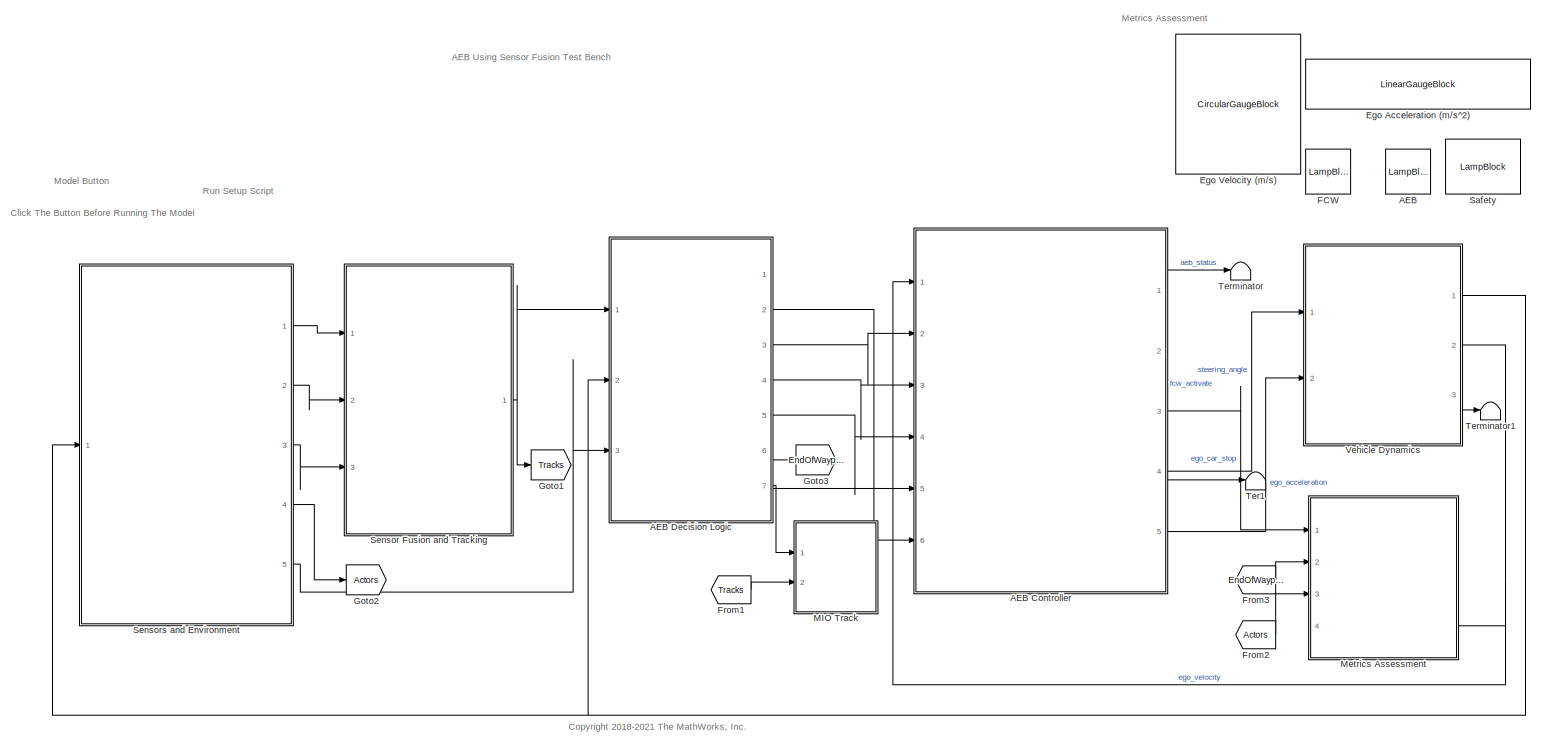
[diagram: root canvas - part 1/1, most of the canvas]
MODEL slx_ee1f37e78bcf
KIND model
CONFIG AbsTol = auto
CONFIG EnableMultiTasking = off
CONFIG FixedStep = 0.05
CONFIG MaxStep = auto
CONFIG MinStep = auto
CONFIG PostLoadFcn = helperSLAEBSetup()\n
CONFIG RelTol = 1e-3
CONFIG SampleTimeConstraint = Unconstrained
CONFIG SolverName = ode45
CONFIG StartTime = 0.0
CONFIG StopTime = scenario.StopTime
BLOCK [LampBlock] AEB
  LabelPosition = Hide
BLOCK [ModelReference] AEB Controller
  CodeInterface = Top model
  ModelNameDialog = AEBController.slx
  ModelReferenceVersion = 4.110
  PortSchema = {"entries":[{"content":{"sides":[{"content":{"connectorIds":["In5","In6","In2","In3","In4","In1"]},"type":"ConnectorPlacement.EquallySpacedRectSide","uuid":"48eb62e1-c687-4ccc-af1d-5db323c86b02"},{"content":{"connectorIds":["Out1","Out4","Out5","Out2","Out3"],"side":"RIGHT"},"type":"ConnectorPlacement.EquallySpacedRectSide","uuid":"cf0b79c1-cc3c-4144-ab0a-ade48c99ebae"},{"content":{"connectorIds":...<+298ch>
  Ports = [6, 5]
BLOCK [ModelReference] AEB Decision Logic
  CodeInterface = Top model
  ModelNameDialog = AEBDecisionLogic.slx
  ModelReferenceVersion = 4.49
  PortSchema = {"entries":[{"content":{"sides":[{"content":{"connectorIds":["In1","In3","In2"]},"type":"ConnectorPlacement.EquallySpacedRectSide","uuid":"e56e8f8b-a309-4236-958d-7c071b30483d"},{"content":{"connectorIds":["Out1","Out2","Out3","Out4","Out5","Out6","Out7"],"side":"RIGHT"},"type":"ConnectorPlacement.EquallySpacedRectSide","uuid":"786f45c2-22a8-47c8-9611-adc89b05d8ab"},{"content":{"connectorIds":[],"...<+294ch>
  Ports = [3, 7]
BLOCK [LinearGaugeBlock] Ego Acceleration (m//s^2)
  LabelPosition = Hide
  ScaleMax = 3
  ScaleMin = -9.8
  TickInterval = 1
BLOCK [CircularGaugeBlock] Ego Velocity (m//s)
  LabelPosition = Hide
  ScaleMax = 20
BLOCK [LampBlock] FCW
  LabelPosition = Hide
BLOCK [From] From1
  GotoTag = Tracks
BLOCK [From] From2
  GotoTag = Actors
BLOCK [From] From3
  GotoTag = EndOfWaypoints
BLOCK [Goto] Goto1
  GotoTag = Tracks
BLOCK [Goto] Goto2
  GotoTag = Actors
BLOCK [Goto] Goto3
  GotoTag = EndOfWaypoints
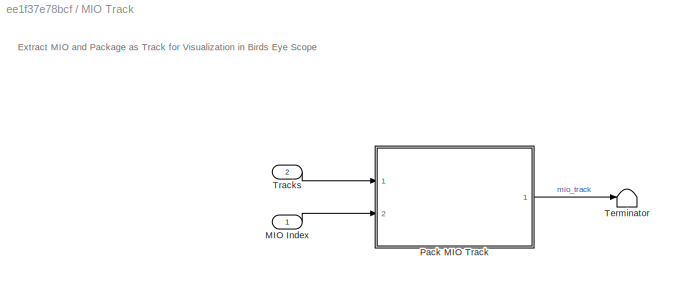
BLOCK [SubSystem] MIO Track
  Ports = [2]
  RequestExecContextInheritance = off
BLOCK [Inport] MIO Track/MIO Index
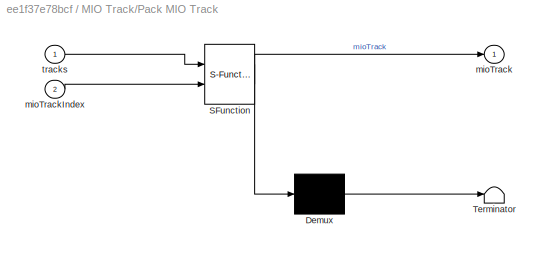
BLOCK [SubSystem] MIO Track/Pack MIO Track
  ErrorFcn = Stateflow.Translate.translate
  PermitHierarchicalResolution = ExplicitOnly
  Ports = [2, 1]
  RequestExecContextInheritance = off
  SFBlockType = MATLAB Function
  TreatAsAtomicUnit = on
BLOCK [Demux] MIO Track/Pack MIO Track/ Demux 
  Outputs = 1
  Ports = [1, 1]
BLOCK [S-Function] MIO Track/Pack MIO Track/ SFunction 
  EnableBusSupport = on
  FunctionName = sf_sfun
  PortCounts = [2 2]
  Ports = [2, 2]
  SFcnIsStateOwnerBlock = off
  SFunctionDeploymentMode = off
  Tag = Stateflow S-Function 3
BLOCK [Terminator] MIO Track/Pack MIO Track/ Terminator 
BLOCK [Outport] MIO Track/Pack MIO Track/mioTrack
  VectorParamsAs1DForOutWhenUnconnected = off
BLOCK [Inport] MIO Track/Pack MIO Track/mioTrackIndex
  Port = 2
BLOCK [Inport] MIO Track/Pack MIO Track/tracks
BLOCK [Terminator] MIO Track/Terminator
BLOCK [Inport] MIO Track/Tracks
  Port = 2
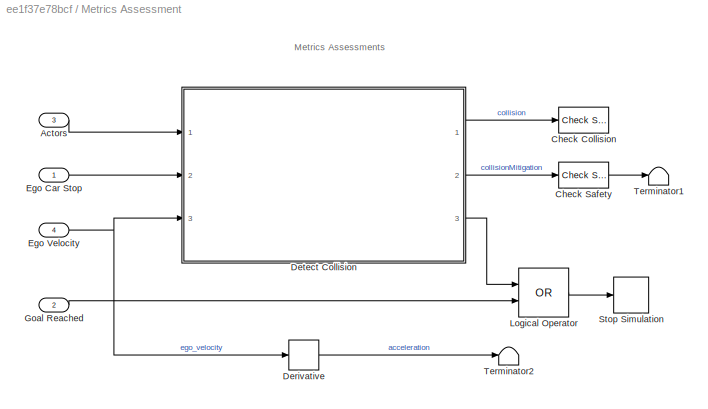
BLOCK [SubSystem] Metrics Assessment
  PortSchema = {"entries":[{"content":{"sides":[{"content":{"connectorIds":["In1","In2","In3"]},"type":"ConnectorPlacement.EquallySpacedRectSide","uuid":"d600d027-9714-4589-bd74-ff85c373770c"},{"content":{"connectorIds":["In4"],"side":"RIGHT"},"type":"ConnectorPlacement.EquallySpacedRectSide","uuid":"c68a0d3a-3a81-49cd-ba70-f2de3f1a882f"},{"content":{"connectorIds":[],"side":"TOP"},"type":"ConnectorPlacement.Equ...<+395ch>
  Ports = [4]
  RequestExecContextInheritance = off
BLOCK [Inport] Metrics Assessment/Actors
  Port = 3
BLOCK [Reference] Metrics Assessment/Check Collision  REF=simulink/Model
Verification/Check Static 
Lower Bound
  Description = 0 <= u
  Ports = [1]
  SourceBlock = simulink/Model\nVerification/Check Static \nLower Bound
  SourceProductBaseCode = SL
  SourceType = Checks_SMin
BLOCK [Reference] Metrics Assessment/Check Safety  REF=simulink/Model
Verification/Check Static 
Lower Bound
  Description = safetyGoal <= u
  Ports = [1, 1]
  SourceBlock = simulink/Model\nVerification/Check Static \nLower Bound
  SourceProductBaseCode = SL
  SourceType = Checks_SMin
BLOCK [Derivative] Metrics Assessment/Derivative
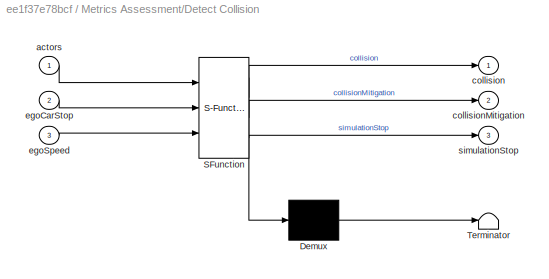
BLOCK [SubSystem] Metrics Assessment/Detect Collision
  AttributesFormatString = ------------------------------------------\nvehicleProfiles = %<vehicleProfiles>
  ErrorFcn = Stateflow.Translate.translate
  PermitHierarchicalResolution = ExplicitOnly
  Ports = [3, 3]
  RequestExecContextInheritance = off
  SFBlockType = MATLAB Function
  TreatAsAtomicUnit = on
BLOCK [Demux] Metrics Assessment/Detect Collision/ Demux 
  Outputs = 1
  Ports = [1, 1]
BLOCK [S-Function] Metrics Assessment/Detect Collision/ SFunction 
  EnableBusSupport = on
  FunctionName = sf_sfun
  Parameters = egoActorID,setSpeed,vehicleProfiles
  PortCounts = [3 4]
  Ports = [3, 4]
  SFcnIsStateOwnerBlock = off
  SFunctionDeploymentMode = off
  Tag = Stateflow S-Function 1
BLOCK [Terminator] Metrics Assessment/Detect Collision/ Terminator 
BLOCK [Inport] Metrics Assessment/Detect Collision/actors
BLOCK [Outport] Metrics Assessment/Detect Collision/collision
BLOCK [Outport] Metrics Assessment/Detect Collision/collisionMitigation
  Port = 2
BLOCK [Inport] Metrics Assessment/Detect Collision/egoCarStop
  Port = 2
BLOCK [Inport] Metrics Assessment/Detect Collision/egoSpeed
  Port = 3
BLOCK [Outport] Metrics Assessment/Detect Collision/simulationStop
  Port = 3
BLOCK [Inport] Metrics Assessment/Ego Car Stop
BLOCK [Inport] Metrics Assessment/Ego Velocity
  Port = 4
BLOCK [Inport] Metrics Assessment/Goal Reached
  Port = 2
BLOCK [Logic] Metrics Assessment/Logical Operator
  AllPortsSameDT = off
  Operator = OR
  OutDataTypeStr = boolean
  Ports = [2, 1]
BLOCK [Stop] Metrics Assessment/Stop Simulation
BLOCK [Terminator] Metrics Assessment/Terminator1
BLOCK [Terminator] Metrics Assessment/Terminator2
BLOCK [LampBlock] Safety
  Icon = Hazards
  LabelPosition = Hide
BLOCK [ModelReference] Sensor Fusion and Tracking
  CodeInterface = Top model
  ModelNameDialog = AEBSensorFusion.slx
  ModelReferenceVersion = 4.28
  Ports = [3, 1]
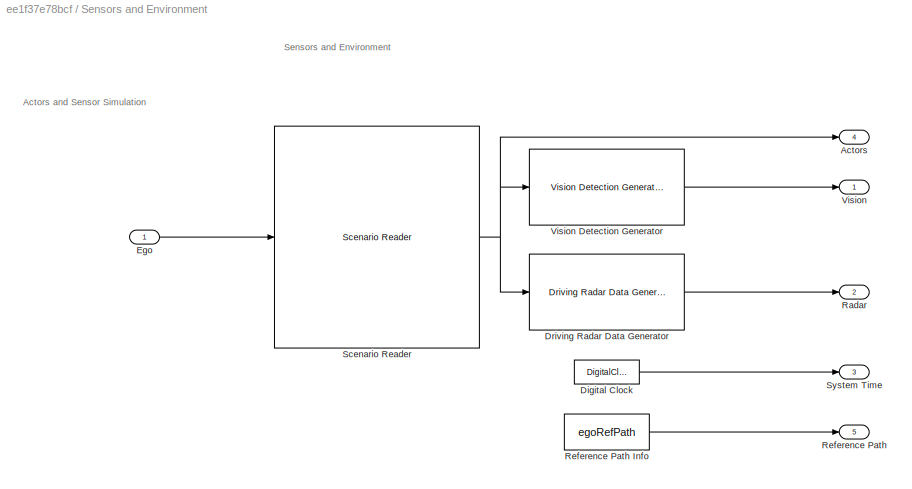
BLOCK [SubSystem] Sensors and Environment
  Ports = [1, 5]
  RequestExecContextInheritance = off
BLOCK [Outport] Sensors and Environment/Actors
  Port = 4
BLOCK [DigitalClock] Sensors and Environment/Digital Clock
  SampleTime = Ts
BLOCK [Reference] Sensors and Environment/Driving Radar Data Generator  REF=drivingscenarioandsensors/Driving Radar Data Generator
  Ports = [1, 1]
  SourceBlock = drivingscenarioandsensors/Driving Radar Data Generator
  SourceProductBaseCode = DR
  SourceType = drivingRadarDataGenerator
BLOCK [Inport] Sensors and Environment/Ego
BLOCK [Outport] Sensors and Environment/Radar
  OutDataTypeStr = Bus: BusRadar
  Port = 2
  VectorParamsAs1DForOutWhenUnconnected = off
BLOCK [Outport] Sensors and Environment/Reference Path 
  Port = 5
BLOCK [Constant] Sensors and Environment/Reference Path Info
  OutDataTypeStr = Bus: BusEgoRefPath
  SampleTime = Ts
  Value = egoRefPath
BLOCK [Reference] Sensors and Environment/Scenario Reader  REF=drivingscenarioandsensors/Scenario Reader
  Ports = [1, 1]
  SourceBlock = drivingscenarioandsensors/Scenario Reader
  SourceProductBaseCode = DR
  SourceType = driving.scenario.internal.ScenarioReader
BLOCK [Outport] Sensors and Environment/System Time
  Port = 3
  VectorParamsAs1DForOutWhenUnconnected = off
BLOCK [Outport] Sensors and Environment/Vision
  VectorParamsAs1DForOutWhenUnconnected = off
BLOCK [Reference] Sensors and Environment/Vision Detection Generator  REF=drivingscenarioandsensors/Vision Detection Generator
  Ports = [1, 1]
  SourceBlock = drivingscenarioandsensors/Vision Detection Generator
  SourceProductBaseCode = DR
  SourceType = visionDetectionGenerator
BLOCK [Terminator] Ter1
BLOCK [Terminator] Terminator
BLOCK [Terminator] Terminator1
BLOCK [SubSystem] Vehicle Dynamics
  Ports = [2, 3]
  ReferencedSubsystem = BicycleWithForceInput
  RequestExecContextInheritance = off
ANNOTATION (root): Run Setup Script
ANNOTATION (root): AEB Using Sensor Fusion Test Bench
ANNOTATION (root): Click The Button Before Running The Model
ANNOTATION (root): <copyright redacted>
ANNOTATION (root): Metrics Assessment
ANNOTATION (root): Model Button
ANNOTATION MIO Track: Extract MIO and Package as Track for Visualization in Birds Eye Scope
ANNOTATION Metrics Assessment: Metrics Assessments
ANNOTATION Sensors and Environment: Sensors and Environment
ANNOTATION Sensors and Environment: Actors and Sensor Simulation
LINE AEB Controller:1 -> Terminator:1
LINE AEB Controller:2 -> Ter1:1
LINE AEB Controller:3 -> Metrics Assessment:1
LINE AEB Controller:4 -> Vehicle Dynamics:1
LINE AEB Controller:5 -> Vehicle Dynamics:2
LINE AEB Decision Logic:1 -> AEB Controller:5
LINE AEB Decision Logic:2 -> AEB Controller:6
LINE AEB Decision Logic:3 -> AEB Controller:2
LINE AEB Decision Logic:4 -> AEB Controller:3
LINE AEB Decision Logic:5 -> AEB Controller:4
LINE AEB Decision Logic:6 -> Goto3:1
LINE AEB Decision Logic:7 -> MIO Track:1
LINE From1:1 -> MIO Track:2
LINE From2:1 -> Metrics Assessment:3
LINE From3:1 -> Metrics Assessment:2
LINE MIO Track/MIO Index:1 -> MIO Track/Pack MIO Track:2
LINE MIO Track/Pack MIO Track:1 -> MIO Track/Terminator:1
LINE MIO Track/Tracks:1 -> MIO Track/Pack MIO Track:1
LINE Metrics Assessment/Actors:1 -> Metrics Assessment/Detect Collision:1
LINE Metrics Assessment/Check Safety:1 -> Metrics Assessment/Terminator1:1
LINE Metrics Assessment/Derivative:1 -> Metrics Assessment/Terminator2:1
LINE Metrics Assessment/Detect Collision:1 -> Metrics Assessment/Check Collision:1
LINE Metrics Assessment/Detect Collision:2 -> Metrics Assessment/Check Safety:1
LINE Metrics Assessment/Detect Collision:3 -> Metrics Assessment/Logical Operator:1
LINE Metrics Assessment/Ego Car Stop:1 -> Metrics Assessment/Detect Collision:2
NET Metrics Assessment/Ego Velocity:1 -> Metrics Assessment/Derivative:1, Metrics Assessment/Detect Collision:3
LINE Metrics Assessment/Goal Reached:1 -> Metrics Assessment/Logical Operator:2
LINE Metrics Assessment/Logical Operator:1 -> Metrics Assessment/Stop Simulation:1
NET Sensor Fusion and Tracking:1 -> AEB Decision Logic:1, Goto1:1
LINE Sensors and Environment/Digital Clock:1 -> Sensors and Environment/System Time:1
LINE Sensors and Environment/Driving Radar Data Generator:1 -> Sensors and Environment/Radar:1
LINE Sensors and Environment/Ego:1 -> Sensors and Environment/Scenario Reader:1
LINE Sensors and Environment/Reference Path Info:1 -> Sensors and Environment/Reference Path :1
NET Sensors and Environment/Scenario Reader:1 -> Sensors and Environment/Actors:1, Sensors and Environment/Driving Radar Data Generator:1, Sensors and Environment/Vision Detection Generator:1
LINE Sensors and Environment/Vision Detection Generator:1 -> Sensors and Environment/Vision:1
LINE Sensors and Environment:1 -> Sensor Fusion and Tracking:1
LINE Sensors and Environment:2 -> Sensor Fusion and Tracking:2
LINE Sensors and Environment:3 -> Sensor Fusion and Tracking:3
LINE Sensors and Environment:4 -> Goto2:1
LINE Sensors and Environment:5 -> AEB Decision Logic:3
NET Vehicle Dynamics:1 -> AEB Decision Logic:2, Sensors and Environment:1
NET Vehicle Dynamics:2 -> AEB Controller:1, Metrics Assessment:4
LINE Vehicle Dynamics:3 -> Terminator1:1
note: NET lines group one-source signal fan-out (src -> all destinations, sorted); 1:1 wires keep LINE
CHART Metrics Assessment/Detect Collision states=1 transitions=1
  STATE_LABEL 'eML_blk_kernel()'
  STATE_LABEL "SCRIPT:\nfunction [collision, collisionMitigation, simulationStop] = detectCollision(actors, vehicleProfiles, egoCarStop, setSpeed, egoSpeed, egoActorID)\n\n% Associate on-path MATLAB function\ncoder.extrinsic('helperSLDetectVehicleCollision', 'warning');\n\n% Assign default value to define output data type\ncollision = false;\n\n% Call on-path MATLAB function\ncollision = helperSLDetectVehicleCollision(act...<+591ch>"
CHART MIO Track/Pack MIO Track states=1 transitions=1
  STATE_LABEL 'eML_blk_kernel()'
  STATE_LABEL 'SCRIPT:\nfunction mioTrack = fcn(tracks, mioTrackIndex)\n% Extract MIO track and package for visualization in Birds Eye Scope\n\nmioTrack = tracks;\n\nif mioTrackIndex > 0\n    % First track represents MIO\n    mioTrack.NumTracks = 1;\n    mioTrack.Tracks(1) = tracks.Tracks(mioTrackIndex);\nelse\n    % No valid MIO track\n    mioTrack.NumTracks = 0;\nend\n'
CHART  states=0 transitions=0
CHART  states=0 transitions=0
